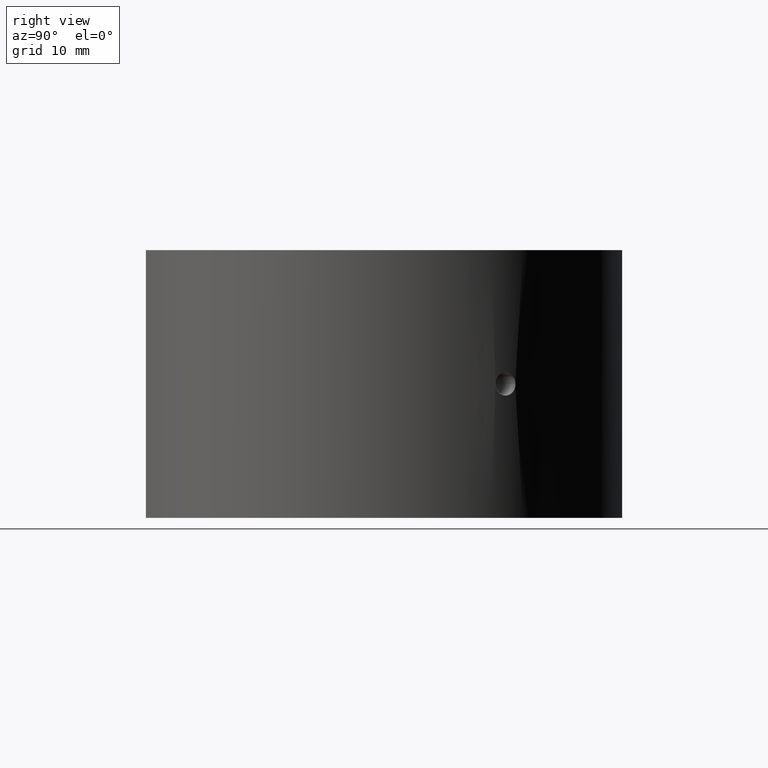
[diagram: clean part render]
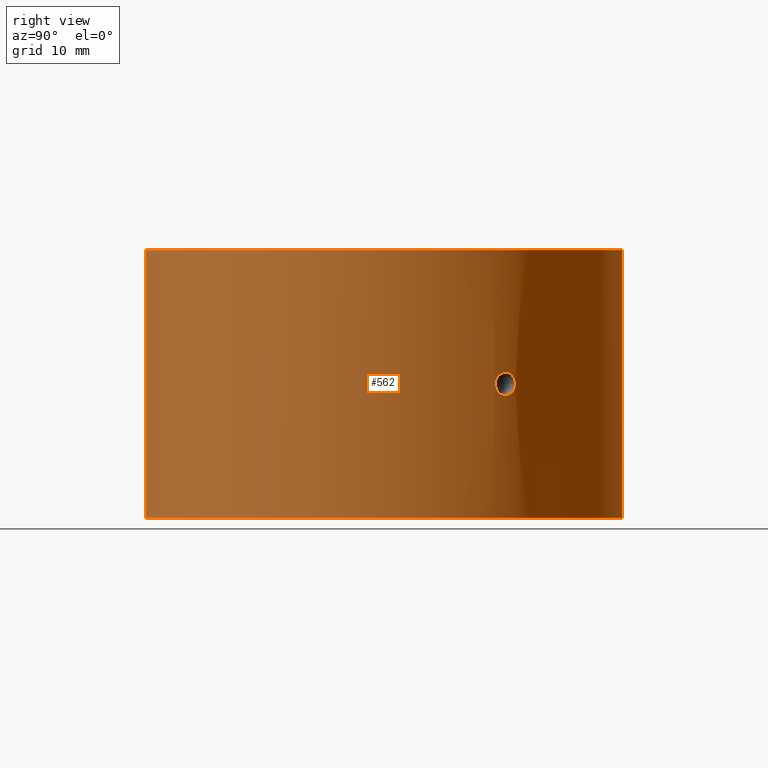
[diagram: same view with one face highlighted and labeled with its STEP entity id]
A machine part, right view. The second image highlights one B-rep face of the part: STEP entity #562.
In plain terms, the highlighted cylindrical surface (partial cylindrical patch) has radius 34.5 mm, axis along (-0, -0, -1).
Its self-contained STEP definition (entity closure, byte-faithful):
#3 = DIRECTION ( 'NONE',  ( -1.224646799147350500E-016, -0.0000000000000000000, -1.000000000000000000 ) ) ;
#25 = CARTESIAN_POINT ( 'NONE',  ( 30.23758799829836600, 16.61168949243172600, 1.482361230014563700 ) ) ;
#27 = FACE_BOUND ( 'NONE', #342, .T. ) ;
#50 = CARTESIAN_POINT ( 'NONE',  ( 29.04247775318852100, 18.62233331304781100, 0.4346111301833520700 ) ) ;
#54 = EDGE_CURVE ( 'NONE', #207, #83, #878, .T. ) ;
#68 = VERTEX_POINT ( 'NONE', #296 ) ;
#79 = CARTESIAN_POINT ( 'NONE',  ( 30.51224779403028000, 16.10143813530254400, -1.006505135180217400 ) ) ;
#82 = CARTESIAN_POINT ( 'NONE',  ( 29.35811851437454200, 18.12109495518915000, -1.319127750892617100 ) ) ;
#83 = VERTEX_POINT ( 'NONE', #1314 ) ;
#86 = CARTESIAN_POINT ( 'NONE',  ( 30.63002486718392700, 15.87618640424934900, -0.5313963152919397600 ) ) ;
#90 = CARTESIAN_POINT ( 'NONE',  ( 29.10889459367058400, 18.51820657100805400, -0.7318007845230979400 ) ) ;
#99 = ORIENTED_EDGE ( 'NONE', *, *, #875, .T. ) ;
#109 = DIRECTION ( 'NONE',  ( -1.000000000000000000, 0.0000000000000000000, 2.011273595335428600E-016 ) ) ;
#128 = CARTESIAN_POINT ( 'NONE',  ( 30.66868651825702200, 15.80131852868237500, 0.2153420814036734700 ) ) ;
#174 = ORIENTED_EDGE ( 'NONE', *, *, #54, .T. ) ;
#184 = AXIS2_PLACEMENT_3D ( 'NONE', #990, #3, #109 ) ;
#189 = CARTESIAN_POINT ( 'NONE',  ( 30.08972613429660500, 16.87807987114846500, -1.597167256544371100 ) ) ;
#195 = CARTESIAN_POINT ( 'NONE',  ( 30.66374211050582900, 15.81092551421640900, -0.2170725880918327500 ) ) ;
#207 = VERTEX_POINT ( 'NONE', #929 ) ;
#211 = LINE ( 'NONE', #1259, #262 ) ;
#217 = ORIENTED_EDGE ( 'NONE', *, *, #471, .T. ) ;
#237 = VECTOR ( 'NONE', #700, 1000.000000000000000 ) ;
#248 = EDGE_CURVE ( 'NONE', #351, #1033, #1105, .T. ) ;
#262 = VECTOR ( 'NONE', #1242, 1000.000000000000000 ) ;
#263 = CARTESIAN_POINT ( 'NONE',  ( 30.64892767103138700, 15.83982321164909000, 0.4323886616049282800 ) ) ;
#296 = CARTESIAN_POINT ( 'NONE',  ( 6.914477565225100300, 33.79999999999998300, -18.99999999999999600 ) ) ;
#301 = FACE_OUTER_BOUND ( 'NONE', #1280, .T. ) ;
#304 = CARTESIAN_POINT ( 'NONE',  ( 29.65949839927705500, 17.62394954343566800, -1.606604037809972200 ) ) ;
#311 = CARTESIAN_POINT ( 'NONE',  ( 30.66868651825701500, 15.80131852868236700, -0.1076955633362643200 ) ) ;
#313 = CARTESIAN_POINT ( 'NONE',  ( 6.914477565225038100, -33.79999999999999700, -19.00000000000000000 ) ) ;
#314 = CARTESIAN_POINT ( 'NONE',  ( 29.20013058716424600, 18.37405685092135600, -1.005935388196645100 ) ) ;
#324 = ORIENTED_EDGE ( 'NONE', *, *, #248, .T. ) ;
#329 = AXIS2_PLACEMENT_3D ( 'NONE', #1035, #696, #930 ) ;
#339 = VERTEX_POINT ( 'NONE', #313 ) ;
#342 = EDGE_LOOP ( 'NONE', ( #174, #99 ) ) ;
#351 = VERTEX_POINT ( 'NONE', #548 ) ;
#375 = CARTESIAN_POINT ( 'NONE',  ( 29.45670614101215200, 17.95996951633083700, 1.432745538090103100 ) ) ;
#376 = CARTESIAN_POINT ( 'NONE',  ( 6.914477565225098500, -33.79999999999998300, -31.93906810035839800 ) ) ;
#389 = CARTESIAN_POINT ( 'NONE',  ( 29.66079961530853000, 17.62177667934558700, 1.607496616914591900 ) ) ;
#421 = CARTESIAN_POINT ( 'NONE',  ( 30.28303148381017400, 16.52864186502585800, -1.431659257899948700 ) ) ;
#427 = CARTESIAN_POINT ( 'NONE',  ( 29.76994331829032300, 17.43693828812442300, -1.649923199324243800 ) ) ;
#471 = EDGE_CURVE ( 'NONE', #1033, #339, #784, .T. ) ;
#480 = CARTESIAN_POINT ( 'NONE',  ( 29.76973101586684600, 17.43733050078629200, 1.650179273840604500 ) ) ;
#492 = CARTESIAN_POINT ( 'NONE',  ( 29.31818664742731800, 18.18515172891904500, 1.243634087298451500 ) ) ;
#498 = CARTESIAN_POINT ( 'NONE',  ( 29.19720684424032000, 18.37923717904023500, 1.015384241932880700 ) ) ;
#508 = EDGE_CURVE ( 'NONE', #68, #351, #211, .T. ) ;
#540 = CARTESIAN_POINT ( 'NONE',  ( 29.93140209035734100, 17.15729449577850800, -1.650038243260007100 ) ) ;
#545 = CARTESIAN_POINT ( 'NONE',  ( 30.66868651825702200, 15.80131852868237500, 2.020667265114357500E-016 ) ) ;
#548 = CARTESIAN_POINT ( 'NONE',  ( 6.914477565225042500, 33.79999999999999700, 19.00000000000000000 ) ) ;
#549 = B_SPLINE_CURVE_WITH_KNOTS ( 'NONE', 3,
 ( #920, #128, #263, #1388, #1276, #730, #1029, #1153, #25, #1365, #905, #1146, #934, #480, #389, #1045, #375, #1378, #492, #498, #717, #50, #1038, #1016 ),
 .UNSPECIFIED., .F., .F.,
 ( 4, 2, 2, 2, 2, 2, 2, 2, 2, 2, 2, 4 ),
 ( 0.005159388879436850600, 0.005804165638136657300, 0.006448942396836463900, 0.006771330776186365900, 0.007093719155536267100, 0.007416107534886169100, 0.007738495914236070300, 0.008383272672935870900, 0.008705661052285769400, 0.009028049431635669700, 0.009672826190335468600, 0.01031760294903526900 ),
 .UNSPECIFIED. ) ;
#550 = CARTESIAN_POINT ( 'NONE',  ( 30.23663832848586400, 16.61341882957256600, -1.483340593935363700 ) ) ;
#562 = ADVANCED_FACE ( 'NONE', ( #27, #301 ), #880, .T. ) ;
#650 = EDGE_CURVE ( 'NONE', #68, #339, #960, .T. ) ;
#652 = CARTESIAN_POINT ( 'NONE',  ( 30.56787817599559500, 15.99557436564169600, -0.8277966330310913000 ) ) ;
#661 = CARTESIAN_POINT ( 'NONE',  ( 30.48028785331765200, 16.16193039125596400, -1.089985301018408800 ) ) ;
#696 = DIRECTION ( 'NONE',  ( -1.224646799147350500E-016, -0.0000000000000000000, -1.000000000000000000 ) ) ;
#700 = DIRECTION ( 'NONE',  ( -1.224646799147350500E-016, -0.0000000000000000000, -1.000000000000000000 ) ) ;
#717 = CARTESIAN_POINT ( 'NONE',  ( 29.13124619434725900, 18.48316280377976600, 0.8315277717275954000 ) ) ;
#730 = CARTESIAN_POINT ( 'NONE',  ( 30.40876212125925400, 16.29610288755638000, 1.242016604596872100 ) ) ;
#759 = CARTESIAN_POINT ( 'NONE',  ( 29.01868651825701000, 18.65920236117099800, -9.183938813363836300E-016 ) ) ;
#784 = LINE ( 'NONE', #376, #237 ) ;
#794 = CARTESIAN_POINT ( 'NONE',  ( 6.914477565225042500, -33.79999999999999700, 19.00000000000000400 ) ) ;
#852 = DIRECTION ( 'NONE',  ( -1.224646799147350500E-016, -0.0000000000000000000, -1.000000000000000000 ) ) ;
#859 = CARTESIAN_POINT ( 'NONE',  ( 29.23724384235039900, 18.31500406149844200, -1.090843108047715900 ) ) ;
#864 = CARTESIAN_POINT ( 'NONE',  ( 30.59178758169041900, 15.94974139801362900, -0.7313581134716352600 ) ) ;
#874 = AXIS2_PLACEMENT_3D ( 'NONE', #1414, #852, #1394 ) ;
#875 = EDGE_CURVE ( 'NONE', #83, #207, #549, .T. ) ;
#878 = B_SPLINE_CURVE_WITH_KNOTS ( 'NONE', 3,
 ( #759, #1082, #1421, #966, #1073, #90, #1192, #314, #859, #82, #1087, #304, #427, #540, #1200, #189, #1307, #550, #421, #1319, #969, #661, #79, #652, #864, #86, #1197, #195, #311, #545 ),
 .UNSPECIFIED., .F., .F.,
 ( 4, 2, 2, 2, 2, 2, 2, 2, 2, 2, 2, 2, 2, 2, 4 ),
 ( 1.202508493686824800E-018, 0.0003224618049648025700, 0.0006449236099296039400, 0.0009673854148944053700, 0.001289847219859206800, 0.001934770829788812000, 0.002579694439718417100, 0.002902156244683221100, 0.003224618049648025600, 0.003547079854612829600, 0.003869541659577634000, 0.004192003464542438100, 0.004514465269507241700, 0.004836927074472046100, 0.005159388879436850600 ),
 .UNSPECIFIED. ) ;
#880 = CYLINDRICAL_SURFACE ( 'NONE', #184, 34.50000000000000000 ) ;
#905 = CARTESIAN_POINT ( 'NONE',  ( 30.08982284198029700, 16.87790516185712900, 1.597088968555100200 ) ) ;
#920 = CARTESIAN_POINT ( 'NONE',  ( 30.66868651825702200, 15.80131852868237500, 2.020667265114357500E-016 ) ) ;
#929 = CARTESIAN_POINT ( 'NONE',  ( 29.01868651825701000, 18.65920236117099800, -9.183938813363836300E-016 ) ) ;
#930 = DIRECTION ( 'NONE',  ( -1.000000000000000000, 0.0000000000000000000, 1.005636797667714300E-016 ) ) ;
#934 = CARTESIAN_POINT ( 'NONE',  ( 29.93297151903547300, 17.15456385275621900, 1.649909518364631300 ) ) ;
#960 = CIRCLE ( 'NONE', #329, 34.50000000000000000 ) ;
#966 = CARTESIAN_POINT ( 'NONE',  ( 29.04715481335129100, 18.61486604098916700, -0.4271676194585118400 ) ) ;
#969 = CARTESIAN_POINT ( 'NONE',  ( 30.40776422391584100, 16.29796970471016600, -1.243991385772641900 ) ) ;
#990 = CARTESIAN_POINT ( 'NONE',  ( 0.0000000000000000000, 0.0000000000000000000, -31.93906810035839800 ) ) ;
#1016 = CARTESIAN_POINT ( 'NONE',  ( 29.01868651825701000, 18.65920236117099800, -9.183938813363836300E-016 ) ) ;
#1029 = CARTESIAN_POINT ( 'NONE',  ( 30.36863045881905900, 16.37083793516234900, 1.311711823978605000 ) ) ;
#1033 = VERTEX_POINT ( 'NONE', #794 ) ;
#1035 = CARTESIAN_POINT ( 'NONE',  ( 1.584578833305349900E-015, 0.0000000000000000000, -19.00000000000000000 ) ) ;
#1038 = CARTESIAN_POINT ( 'NONE',  ( 29.01868651825702000, 18.65920236117099800, 0.2180224855462728800 ) ) ;
#1045 = CARTESIAN_POINT ( 'NONE',  ( 29.50598473554563100, 17.87895065642285200, 1.483373040744777600 ) ) ;
#1073 = CARTESIAN_POINT ( 'NONE',  ( 29.06430065050728100, 18.58811843003136500, -0.5319715229177703900 ) ) ;
#1082 = CARTESIAN_POINT ( 'NONE',  ( 29.01868651825700200, 18.65920236117099800, -0.1090360706454931000 ) ) ;
#1087 = CARTESIAN_POINT ( 'NONE',  ( 29.45463198608240800, 17.96424497079507200, -1.442049275761412300 ) ) ;
#1105 = CIRCLE ( 'NONE', #874, 34.50000000000000000 ) ;
#1146 = CARTESIAN_POINT ( 'NONE',  ( 29.98607866610678100, 17.06154176926747100, 1.639157965665024400 ) ) ;
#1153 = CARTESIAN_POINT ( 'NONE',  ( 30.28306777836129300, 16.52857696762910000, 1.431644453903155400 ) ) ;
#1162 = ORIENTED_EDGE ( 'NONE', *, *, #508, .T. ) ;
#1185 = ORIENTED_EDGE ( 'NONE', *, *, #650, .F. ) ;
#1192 = CARTESIAN_POINT ( 'NONE',  ( 29.13612057503167200, 18.47539091076425800, -0.8265741951211904600 ) ) ;
#1197 = CARTESIAN_POINT ( 'NONE',  ( 30.64436581989209800, 15.84844753697775800, -0.4285266159904868600 ) ) ;
#1200 = CARTESIAN_POINT ( 'NONE',  ( 29.98561733921992100, 17.06235481285371200, -1.639305754636035500 ) ) ;
#1242 = DIRECTION ( 'NONE',  ( 1.224646799147350500E-016, 0.0000000000000000000, 1.000000000000000000 ) ) ;
#1259 = CARTESIAN_POINT ( 'NONE',  ( 6.914477565225098500, 33.79999999999998300, -31.93906810035839800 ) ) ;
#1276 = CARTESIAN_POINT ( 'NONE',  ( 30.51608022640900900, 16.09478113836861700, 1.013687466116998100 ) ) ;
#1280 = EDGE_LOOP ( 'NONE', ( #324, #217, #1185, #1162 ) ) ;
#1307 = CARTESIAN_POINT ( 'NONE',  ( 30.13990603287875200, 16.78827111240747500, -1.565998016103201000 ) ) ;
#1314 = CARTESIAN_POINT ( 'NONE',  ( 30.66868651825702200, 15.80131852868237500, 2.020667265114357500E-016 ) ) ;
#1319 = CARTESIAN_POINT ( 'NONE',  ( 30.36831431609746400, 16.37142276500224700, -1.312190880152798800 ) ) ;
#1365 = CARTESIAN_POINT ( 'NONE',  ( 30.14099662717782400, 16.78631222360229100, 1.565230473453316500 ) ) ;
#1378 = CARTESIAN_POINT ( 'NONE',  ( 29.36294234467234100, 18.11285892864305300, 1.313253114964060700 ) ) ;
#1388 = CARTESIAN_POINT ( 'NONE',  ( 30.57304402355881500, 15.98579825638822200, 0.8295326662063664500 ) ) ;
#1394 = DIRECTION ( 'NONE',  ( -1.000000000000000000, 0.0000000000000000000, 1.005636797667714300E-016 ) ) ;
#1414 = CARTESIAN_POINT ( 'NONE',  ( 6.238236670065282200E-015, 0.0000000000000000000, 19.00000000000000400 ) ) ;
#1421 = CARTESIAN_POINT ( 'NONE',  ( 29.02448524578522200, 18.65019293980534000, -0.2162467584764880000 ) ) ;